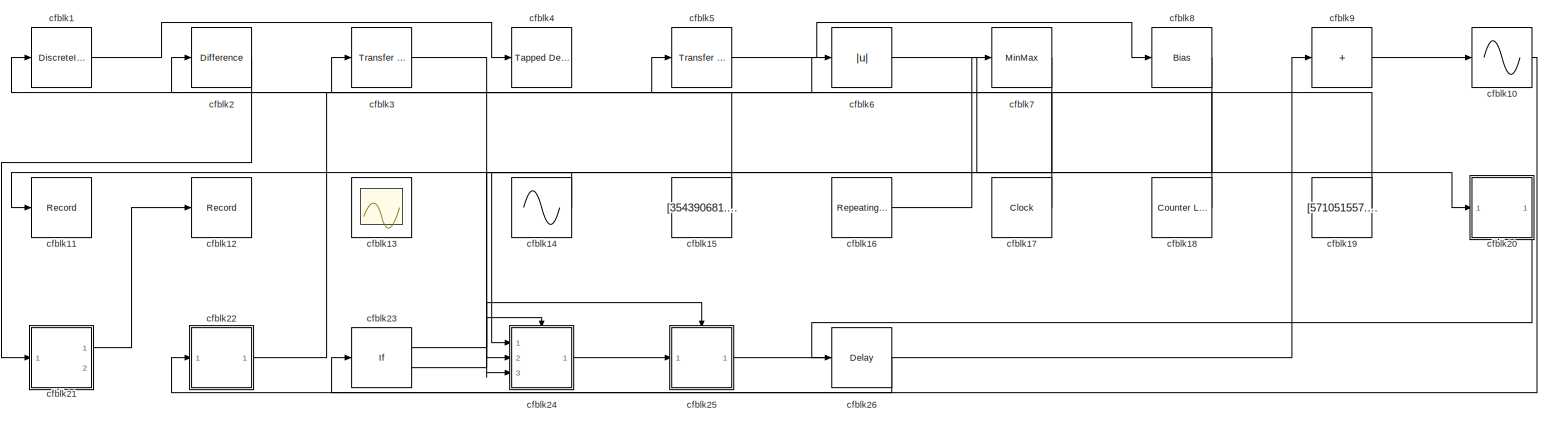
[diagram: root canvas - part 1/1, most of the canvas]
MODEL slx_7b26972e7db9
KIND model
CONFIG AbsTol = auto
CONFIG EnableMultiTasking = off
CONFIG FixedStep = auto
CONFIG MaxStep = auto
CONFIG MinStep = auto
CONFIG RelTol = 1e-3
CONFIG SampleTimeConstraint = Unconstrained
CONFIG SolverName = VariableStepAuto
CONFIG StartTime = 0.0
CONFIG StopTime = 10.0
BLOCK [DiscreteIntegrator] cfblk1
  ICPrevOutput = DiscIntNeverNeededParam
  ICPrevScaledInput = DiscIntNeverNeededParam
  InitialConditionSetting = Auto
  Ports = [1, 1]
BLOCK [Sin] cfblk10
  Ports = [1, 1]
  SampleTime = 0
  TimeSource = Use external signal
BLOCK [Record] cfblk11
  FileSettingsInternal = {"entries":[{"content":{"excelSettings":{"content":{},"type":"Streamout.ExcelSettings"}},"type":"Streamout.FileSettingStorage","uuid":"a95cfcac-30b8-41b1-ab21-91b932590148"}],"packageUris":["http://schema.mathworks.com/mf0/streamout_blocks/R2020a"],"version":"1.0"}
  Ports = [1]
  SignalsInternal = {"entries":[{"content":{"signals":[{"content":{"blockPath":["sampleModel269/cfblk11"],"channel":[],"dimensions":[1],"domain":"sampleModel269/cfblk11","lineColor":"#a2142f","plots":[1],"port":1,"sid":[""],"signalID":11182,"signalName":"cfblk14"},"type":"RecordBlkView.Signal","uuid":"143d106d-0a9b-4ea0-a106-93e86db1fab6"}]},"type":"RecordBlkView.InputSignals","uuid":"beee846c-ed52-4064-b643-2f2c76b2...<+98ch>
  VisualizationBindings = {"sparklinesplugin":{"info":[{"bindingParametersList":[],"subplotID":1}]}}
BLOCK [Record] cfblk12
  FileSettingsInternal = {"entries":[{"content":{"excelSettings":{"content":{},"type":"Streamout.ExcelSettings"}},"type":"Streamout.FileSettingStorage","uuid":"76f47d6b-32a8-4463-b479-a408041714ff"}],"packageUris":["http://schema.mathworks.com/mf0/streamout_blocks/R2020a"],"version":"1.0"}
  Ports = [1]
  SignalsInternal = {"entries":[{"content":{"signals":[{"content":{"blockPath":["sampleModel269/cfblk12"],"channel":[],"dimensions":[1],"domain":"sampleModel269/cfblk12","lineColor":"#4dbeee","plots":[1],"port":1,"sid":[""],"signalID":11178,"signalName":"cfblk21:1"},"type":"RecordBlkView.Signal","uuid":"0b96663d-678e-4f35-ab6c-196b7275346c"}]},"type":"RecordBlkView.InputSignals","uuid":"a872c68a-74c6-4317-a7fc-2515fb...<+100ch>
  VisualizationBindings = {"sparklinesplugin":{"info":[{"bindingParametersList":[],"subplotID":1}]}}
BLOCK [Scope] cfblk13
  Floating = on
  NumInputPorts = 1
  Ports = []
BLOCK [Sin] cfblk14
  Amplitude = [-227644407.453047]
  Bias = [-387999756.448092]
  Ports = [0, 1]
  SampleTime = 0
BLOCK [Constant] cfblk15
  SampleTime = 1
  Value = [354390681.939430]
BLOCK [Reference] cfblk16  REF=simulink/Sources/Repeating
Sequence
Stair
  Ports = [0, 1]
  SourceBlock = simulink/Sources/Repeating\nSequence\nStair
  SourceProductBaseCode = SL
  SourceType = Repeating Sequence Stair
BLOCK [Clock] cfblk17
BLOCK [Reference] cfblk18  REF=simulink/Sources/Counter
Limited
  Ports = [0, 1]
  SourceBlock = simulink/Sources/Counter\nLimited
  SourceProductBaseCode = SL
  SourceType = Counter Limited
BLOCK [Constant] cfblk19
  SampleTime = 1
  Value = [571051557.877048]
BLOCK [Reference] cfblk2  REF=simulink/Discrete/Difference
  Ports = [1, 1]
  SourceBlock = simulink/Discrete/Difference
  SourceProductBaseCode = SL
  SourceType = Difference
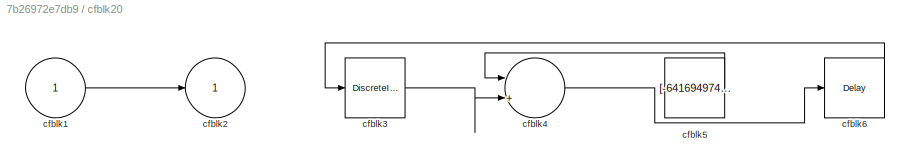
BLOCK [SubSystem] cfblk20
  Ports = [1, 1]
  RequestExecContextInheritance = off
BLOCK [Inport] cfblk20/cfblk1
BLOCK [Outport] cfblk20/cfblk2
BLOCK [DiscreteIntegrator] cfblk20/cfblk3
  ICPrevOutput = DiscIntNeverNeededParam
  ICPrevScaledInput = DiscIntNeverNeededParam
  InitialConditionSetting = Auto
  Ports = [1, 1]
BLOCK [Sum] cfblk20/cfblk4
  Inputs = |++
  Ports = [2, 1]
BLOCK [Constant] cfblk20/cfblk5
  SampleTime = 1
  Value = [-641694974.250274]
BLOCK [Delay] cfblk20/cfblk6
  InputPortMap = u0
  Ports = [1, 1]
  SampleTime = 1
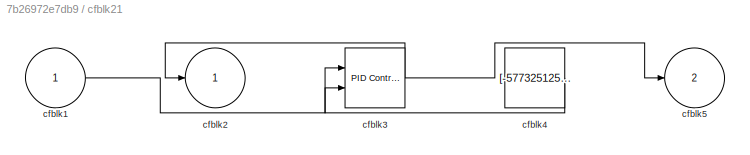
BLOCK [SubSystem] cfblk21
  Ports = [1, 2]
  RequestExecContextInheritance = off
BLOCK [Inport] cfblk21/cfblk1
BLOCK [Outport] cfblk21/cfblk2
BLOCK [Reference] cfblk21/cfblk3  REF=slpidlib/PID Controller (2DOF)
  Ports = [2, 1]
  SourceBlock = slpidlib/PID Controller (2DOF)
  SourceProductBaseCode = SL
  SourceType = PID 2dof
BLOCK [Constant] cfblk21/cfblk4
  SampleTime = 1
  Value = [-577325125.986620]
BLOCK [Outport] cfblk21/cfblk5
  Port = 2
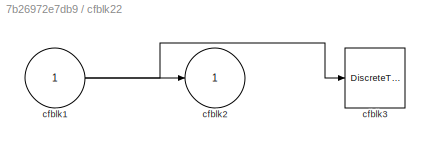
BLOCK [SubSystem] cfblk22
  Ports = [1, 1]
  RequestExecContextInheritance = off
BLOCK [Inport] cfblk22/cfblk1
BLOCK [Outport] cfblk22/cfblk2
BLOCK [DiscreteTransferFcn] cfblk22/cfblk3
  InputPortMap = u0
  Ports = [1, 1]
  SampleTime = 1
BLOCK [If] cfblk23
  IfExpression = u1 >= 0
  Ports = [1, 2]
  SampleTime = 1
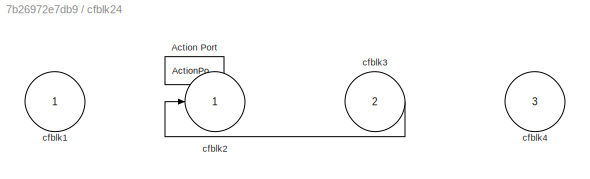
BLOCK [SubSystem] cfblk24
  Ports = [3, 1, 0, 0, 0, 0, 0, 1]
  RequestExecContextInheritance = off
  TreatAsAtomicUnit = on
BLOCK [ActionPort] cfblk24/Action Port
  ActionPortLabel = if(u1 >= 0)
BLOCK [Inport] cfblk24/cfblk1
BLOCK [Outport] cfblk24/cfblk2
BLOCK [Inport] cfblk24/cfblk3
  Port = 2
BLOCK [Inport] cfblk24/cfblk4
  Port = 3
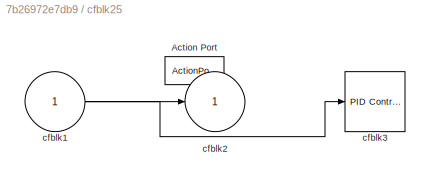
BLOCK [SubSystem] cfblk25
  Ports = [1, 1, 0, 0, 0, 0, 0, 1]
  RequestExecContextInheritance = off
  TreatAsAtomicUnit = on
BLOCK [ActionPort] cfblk25/Action Port
  ActionPortLabel = else
BLOCK [Inport] cfblk25/cfblk1
BLOCK [Outport] cfblk25/cfblk2
BLOCK [Reference] cfblk25/cfblk3  REF=slpidlib/PID Controller
  Ports = [1, 1]
  SourceBlock = slpidlib/PID Controller
  SourceProductBaseCode = SL
  SourceType = PID 1dof
BLOCK [Delay] cfblk26
  InputPortMap = u0
  Ports = [1, 1]
  SampleTime = 1
BLOCK [Reference] cfblk3  REF=simulink/Discrete/Transfer Fcn
Lead or Lag
  Ports = [1, 1]
  SourceBlock = simulink/Discrete/Transfer Fcn\nLead or Lag
  SourceProductBaseCode = SL
  SourceType = Lead or Lag Compensator
BLOCK [Reference] cfblk4  REF=simulink/Discrete/Tapped Delay
  Ports = [1, 1]
  SourceBlock = simulink/Discrete/Tapped Delay
  SourceProductBaseCode = SL
  SourceType = Tapped Delay Line
BLOCK [Reference] cfblk5  REF=simulink/Discrete/Transfer Fcn
First Order
  Ports = [1, 1]
  SourceBlock = simulink/Discrete/Transfer Fcn\nFirst Order
  SourceProductBaseCode = SL
  SourceType = First Order Transfer Fcn
BLOCK [Abs] cfblk6
  SaturateOnIntegerOverflow = off
BLOCK [MinMax] cfblk7
  Function = max
  Ports = [1, 1]
BLOCK [Bias] cfblk8
  Bias = [-212025207.144267]
  SaturateOnIntegerOverflow = off
BLOCK [Sum] cfblk9
  IconShape = rectangular
  Inputs = +
  Ports = [1, 1]
LINE cfblk10:1 -> cfblk22:1
LINE cfblk14:1 -> cfblk11:1
LINE cfblk15:1 -> cfblk1:1
LINE cfblk16:1 -> cfblk7:1
LINE cfblk17:1 -> cfblk5:1
LINE cfblk18:1 -> cfblk3:1
LINE cfblk19:1 -> cfblk2:1
LINE cfblk1:1 -> cfblk4:1
LINE cfblk20/cfblk1:1 -> cfblk20/cfblk2:1
LINE cfblk20/cfblk3:1 -> cfblk20/cfblk4:2
LINE cfblk20/cfblk4:1 -> cfblk20/cfblk6:1
LINE cfblk20/cfblk5:1 -> cfblk20/cfblk4:1
LINE cfblk20/cfblk6:1 -> cfblk20/cfblk3:1
LINE cfblk20:1 -> cfblk26:1
LINE cfblk21/cfblk1:1 -> cfblk21/cfblk3:2
NET cfblk21/cfblk3:1 -> cfblk21/cfblk2:1, cfblk21/cfblk5:1
LINE cfblk21/cfblk4:1 -> cfblk21/cfblk3:1
LINE cfblk21:1 -> cfblk12:1
NET cfblk22/cfblk1:1 -> cfblk22/cfblk2:1, cfblk22/cfblk3:1
LINE cfblk22:1 -> cfblk6:1
LINE cfblk23:1 -> cfblk24:ifaction
LINE cfblk23:2 -> cfblk25:ifaction
LINE cfblk24/cfblk3:1 -> cfblk24/cfblk2:1
LINE cfblk24:1 -> cfblk25:1
NET cfblk25/cfblk1:1 -> cfblk25/cfblk2:1, cfblk25/cfblk3:1
LINE cfblk25:1 -> cfblk9:1
LINE cfblk26:1 -> cfblk23:1
LINE cfblk2:1 -> cfblk21:1
LINE cfblk3:1 -> cfblk24:3
LINE cfblk5:1 -> cfblk8:1
LINE cfblk6:1 -> cfblk20:1
LINE cfblk7:1 -> cfblk24:1
LINE cfblk8:1 -> cfblk24:2
LINE cfblk9:1 -> cfblk10:1
note: NET lines group one-source signal fan-out (src -> all destinations, sorted); 1:1 wires keep LINE
